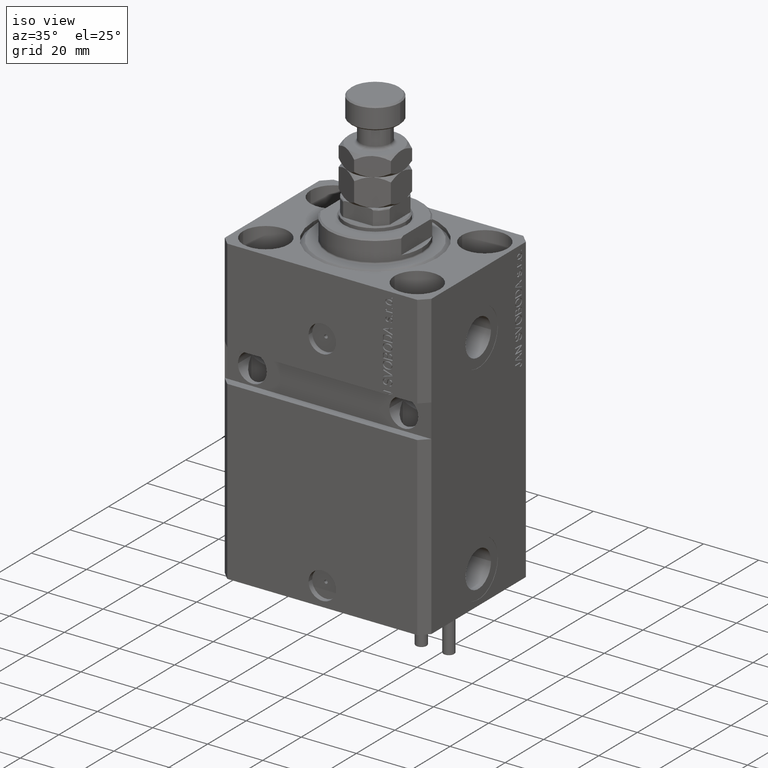
[diagram: clean part render]
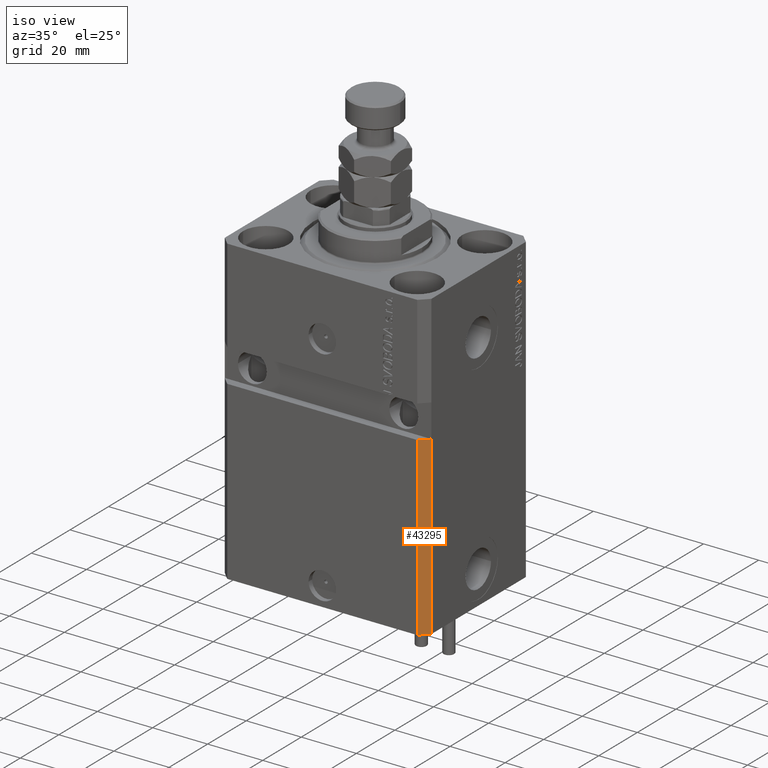
[diagram: same view with one face highlighted and labeled with its STEP entity id]
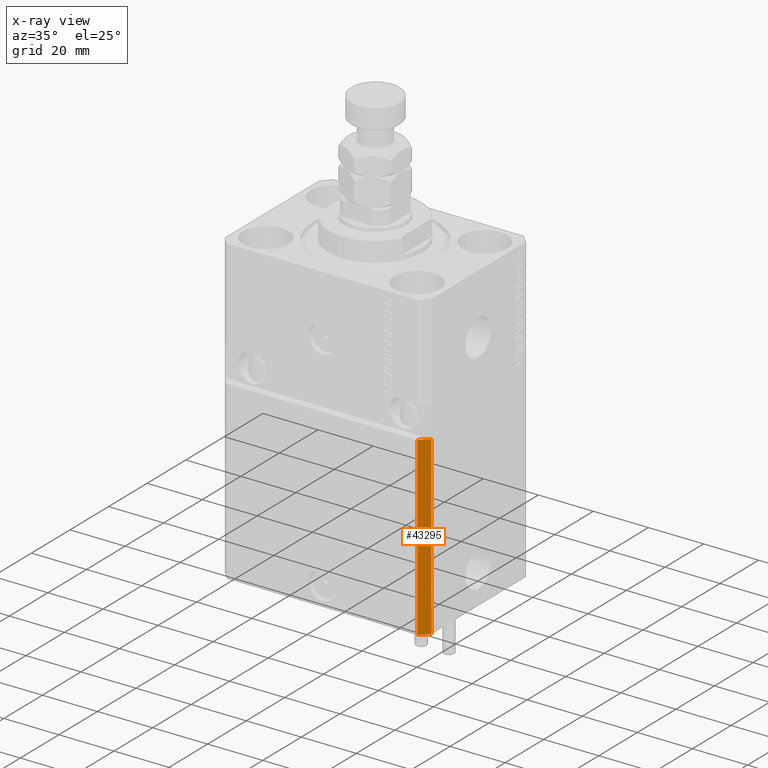
[diagram: x-ray of the same camera — body ghosted, the highlighted face saturated]
A machine part, iso view. The second image highlights one B-rep face of the part: STEP entity #43295.
The next image is the same camera in x-ray: the body ghosted, the highlighted face saturated — about 0% of this face is hidden behind the body in this view.
In plain terms, the highlighted planar face has unit normal (0.7071, -0.7071, 0).
Its self-contained STEP definition (entity closure, byte-faithful):
#2051 = CARTESIAN_POINT ( 'NONE',  ( 34.49999999999999289, -27.49999999999999289, -46.00000000000000711 ) ) ;
#3326 = VERTEX_POINT ( 'NONE', #42550 ) ;
#7018 = AXIS2_PLACEMENT_3D ( 'NONE', #36596, #40579, #21639 ) ;
#8294 = DIRECTION ( 'NONE',  ( 0.7071067811865474617, 0.7071067811865474617, 0.000000000000000000 ) ) ;
#8522 = EDGE_CURVE ( 'NONE', #31905, #3326, #27264, .T. ) ;
#10870 = EDGE_CURVE ( 'NONE', #3326, #16147, #41217, .T. ) ;
#11053 = DIRECTION ( 'NONE',  ( 0.000000000000000000, 0.000000000000000000, 1.000000000000000000 ) ) ;
#11698 = CARTESIAN_POINT ( 'NONE',  ( 34.49999999999999289, -27.49999999999999289, -46.00000000000000000 ) ) ;
#15443 = DIRECTION ( 'NONE',  ( 0.7071067811865474617, 0.7071067811865474617, -6.542051911182397555E-17 ) ) ;
#16147 = VERTEX_POINT ( 'NONE', #33828 ) ;
#18218 = VECTOR ( 'NONE', #11053, 1000.000000000000000 ) ;
#21365 = ORIENTED_EDGE ( 'NONE', *, *, #45898, .F. ) ;
#21639 = DIRECTION ( 'NONE',  ( 0.7071067811865474617, 0.7071067811865474617, 0.000000000000000000 ) ) ;
#23287 = ORIENTED_EDGE ( 'NONE', *, *, #46343, .F. ) ;
#23433 = VERTEX_POINT ( 'NONE', #2051 ) ;
#26288 = CARTESIAN_POINT ( 'NONE',  ( 37.49999999999999289, -24.50000000000000000, -110.0000000000000000 ) ) ;
#26670 = ORIENTED_EDGE ( 'NONE', *, *, #10870, .T. ) ;
#26730 = CARTESIAN_POINT ( 'NONE',  ( 34.49999999999999289, -27.49999999999999645, -110.0000000000000000 ) ) ;
#26982 = DIRECTION ( 'NONE',  ( 0.000000000000000000, 0.000000000000000000, 1.000000000000000000 ) ) ;
#27264 = LINE ( 'NONE', #38469, #39660 ) ;
#29138 = PLANE ( 'NONE',  #7018 ) ;
#30673 = LINE ( 'NONE', #11698, #48526 ) ;
#31007 = VECTOR ( 'NONE', #26982, 1000.000000000000000 ) ;
#31623 = EDGE_LOOP ( 'NONE', ( #23287, #21365, #45844, #26670 ) ) ;
#31905 = VERTEX_POINT ( 'NONE', #42799 ) ;
#33828 = CARTESIAN_POINT ( 'NONE',  ( 37.49999999999999289, -24.49999999999999289, -46.00000000000000711 ) ) ;
#36596 = CARTESIAN_POINT ( 'NONE',  ( 34.49999999999999289, -27.49999999999999645, -110.0000000000000000 ) ) ;
#38469 = CARTESIAN_POINT ( 'NONE',  ( 34.49999999999999289, -27.49999999999999645, -110.0000000000000000 ) ) ;
#39660 = VECTOR ( 'NONE', #8294, 1000.000000000000114 ) ;
#40334 = FACE_OUTER_BOUND ( 'NONE', #31623, .T. ) ;
#40579 = DIRECTION ( 'NONE',  ( 0.7071067811865475727, -0.7071067811865475727, 0.000000000000000000 ) ) ;
#41217 = LINE ( 'NONE', #26288, #18218 ) ;
#42165 = LINE ( 'NONE', #26730, #31007 ) ;
#42550 = CARTESIAN_POINT ( 'NONE',  ( 37.49999999999999289, -24.50000000000000000, -110.0000000000000000 ) ) ;
#42799 = CARTESIAN_POINT ( 'NONE',  ( 34.49999999999999289, -27.49999999999999645, -110.0000000000000000 ) ) ;
#43295 = ADVANCED_FACE ( 'NONE', ( #40334 ), #29138, .T. ) ;
#45844 = ORIENTED_EDGE ( 'NONE', *, *, #8522, .T. ) ;
#45898 = EDGE_CURVE ( 'NONE', #31905, #23433, #42165, .T. ) ;
#46343 = EDGE_CURVE ( 'NONE', #23433, #16147, #30673, .T. ) ;
#48526 = VECTOR ( 'NONE', #15443, 1000.000000000000114 ) ;